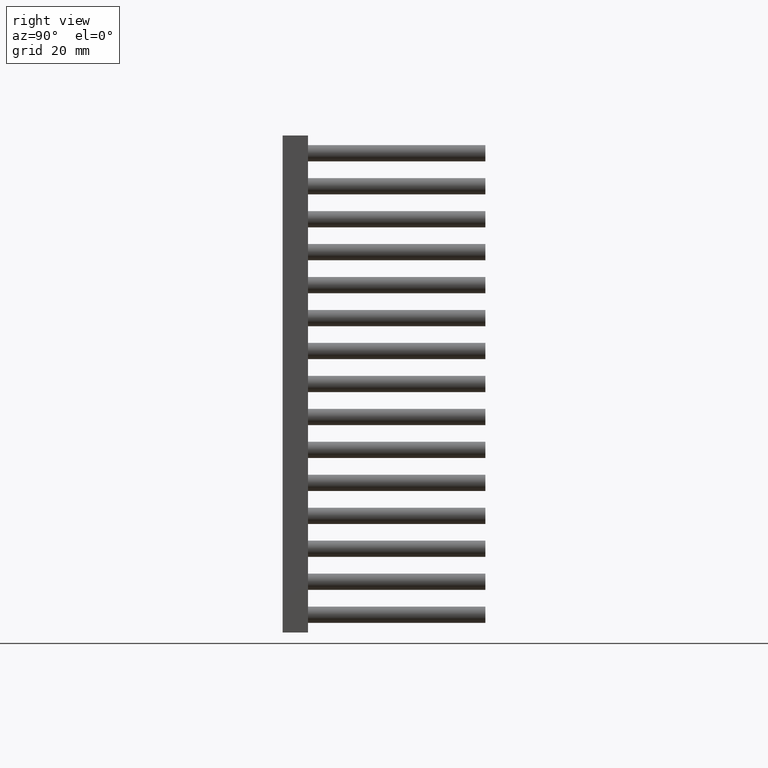
[diagram: clean part render]
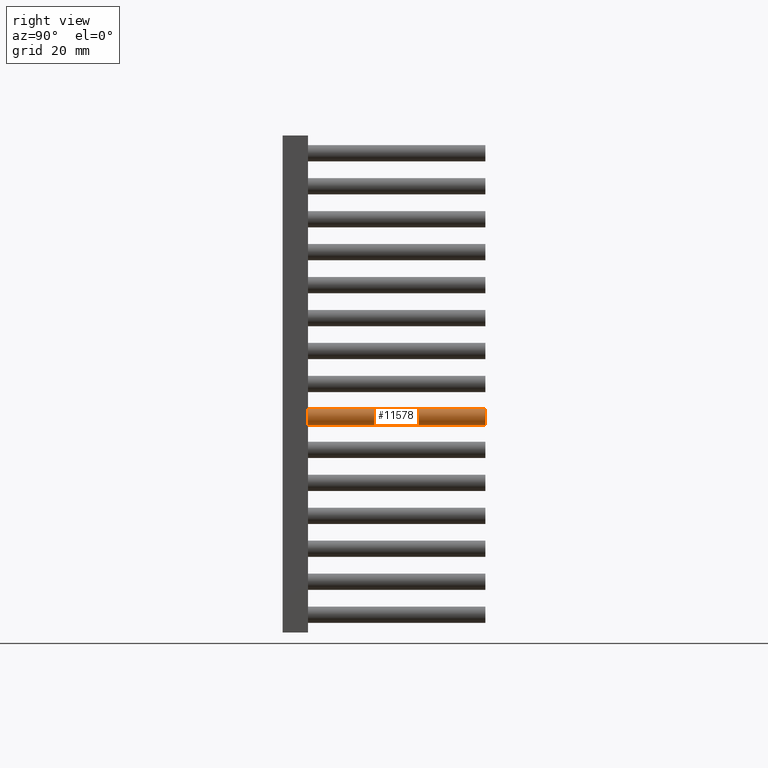
[diagram: same view with one face highlighted and labeled with its STEP entity id]
A machine part, right view. The second image highlights one B-rep face of the part: STEP entity #11578.
In plain terms, the highlighted cylindrical surface (edge-blend (fillet) strip) has radius 1.6 mm, axis along (-0, -1, -0).
Its self-contained STEP definition (entity closure, byte-faithful):
#1226 = CARTESIAN_POINT ( 'NONE',  ( 94.49999999999998579, 40.00000000000000000, 44.10000000000000142 ) ) ;
#1851 = AXIS2_PLACEMENT_3D ( 'NONE', #7599, #15740, #11588 ) ;
#2941 = VERTEX_POINT ( 'NONE', #15199 ) ;
#3660 = VECTOR ( 'NONE', #8672, 1000.000000000000000 ) ;
#4255 = ORIENTED_EDGE ( 'NONE', *, *, #8784, .F. ) ;
#4496 = CYLINDRICAL_SURFACE ( 'NONE', #1851, 1.599999999999997202 ) ;
#4740 = CARTESIAN_POINT ( 'NONE',  ( 94.49999999999998579, 40.00000000000000000, 40.90000000000000568 ) ) ;
#4893 = ORIENTED_EDGE ( 'NONE', *, *, #12073, .F. ) ;
#5008 = AXIS2_PLACEMENT_3D ( 'NONE', #17200, #7307, #16094 ) ;
#5428 = CARTESIAN_POINT ( 'NONE',  ( 94.49999999999998579, 5.000000000000000000, 40.90000000000000568 ) ) ;
#5945 = LINE ( 'NONE', #4740, #17463 ) ;
#5961 = FACE_OUTER_BOUND ( 'NONE', #8488, .T. ) ;
#6079 = VERTEX_POINT ( 'NONE', #1226 ) ;
#6567 = VERTEX_POINT ( 'NONE', #5428 ) ;
#6894 = ORIENTED_EDGE ( 'NONE', *, *, #7850, .T. ) ;
#7307 = DIRECTION ( 'NONE',  ( 0.0000000000000000000, 1.000000000000000000, 0.0000000000000000000 ) ) ;
#7599 = CARTESIAN_POINT ( 'NONE',  ( 94.49999999999998579, 40.00000000000000000, 42.50000000000000000 ) ) ;
#7850 = EDGE_CURVE ( 'NONE', #6079, #2941, #13009, .T. ) ;
#7990 = DIRECTION ( 'NONE',  ( 0.0000000000000000000, 1.000000000000000000, 0.0000000000000000000 ) ) ;
#8488 = EDGE_LOOP ( 'NONE', ( #4255, #6894, #17459, #4893 ) ) ;
#8672 = DIRECTION ( 'NONE',  ( -0.0000000000000000000, -1.000000000000000000, -0.0000000000000000000 ) ) ;
#8784 = EDGE_CURVE ( 'NONE', #6079, #12095, #11190, .T. ) ;
#9432 = CIRCLE ( 'NONE', #14426, 1.599999999999997202 ) ;
#9475 = CARTESIAN_POINT ( 'NONE',  ( 94.49999999999998579, 5.000000000000000000, 42.50000000000000000 ) ) ;
#9852 = EDGE_CURVE ( 'NONE', #2941, #6567, #9432, .T. ) ;
#10825 = CARTESIAN_POINT ( 'NONE',  ( 94.49999999999998579, 40.00000000000000000, 40.90000000000000568 ) ) ;
#11190 = CIRCLE ( 'NONE', #5008, 1.599999999999997202 ) ;
#11578 = ADVANCED_FACE ( 'NONE', ( #5961 ), #4496, .T. ) ;
#11588 = DIRECTION ( 'NONE',  ( 0.0000000000000000000, 0.0000000000000000000, -1.000000000000000000 ) ) ;
#12073 = EDGE_CURVE ( 'NONE', #12095, #6567, #5945, .T. ) ;
#12095 = VERTEX_POINT ( 'NONE', #10825 ) ;
#13009 = LINE ( 'NONE', #14309, #3660 ) ;
#13801 = DIRECTION ( 'NONE',  ( 0.0000000000000000000, 0.0000000000000000000, 1.000000000000000000 ) ) ;
#14309 = CARTESIAN_POINT ( 'NONE',  ( 94.49999999999998579, 40.00000000000000000, 44.10000000000000142 ) ) ;
#14426 = AXIS2_PLACEMENT_3D ( 'NONE', #9475, #7990, #13801 ) ;
#15199 = CARTESIAN_POINT ( 'NONE',  ( 94.49999999999998579, 5.000000000000000000, 44.10000000000000142 ) ) ;
#15740 = DIRECTION ( 'NONE',  ( -0.0000000000000000000, -1.000000000000000000, -0.0000000000000000000 ) ) ;
#16094 = DIRECTION ( 'NONE',  ( 0.0000000000000000000, 0.0000000000000000000, 1.000000000000000000 ) ) ;
#17190 = DIRECTION ( 'NONE',  ( -0.0000000000000000000, -1.000000000000000000, -0.0000000000000000000 ) ) ;
#17200 = CARTESIAN_POINT ( 'NONE',  ( 94.49999999999998579, 40.00000000000000000, 42.50000000000000000 ) ) ;
#17459 = ORIENTED_EDGE ( 'NONE', *, *, #9852, .T. ) ;
#17463 = VECTOR ( 'NONE', #17190, 1000.000000000000000 ) ;